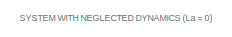
[diagram: root canvas - part 1/5, top left region]
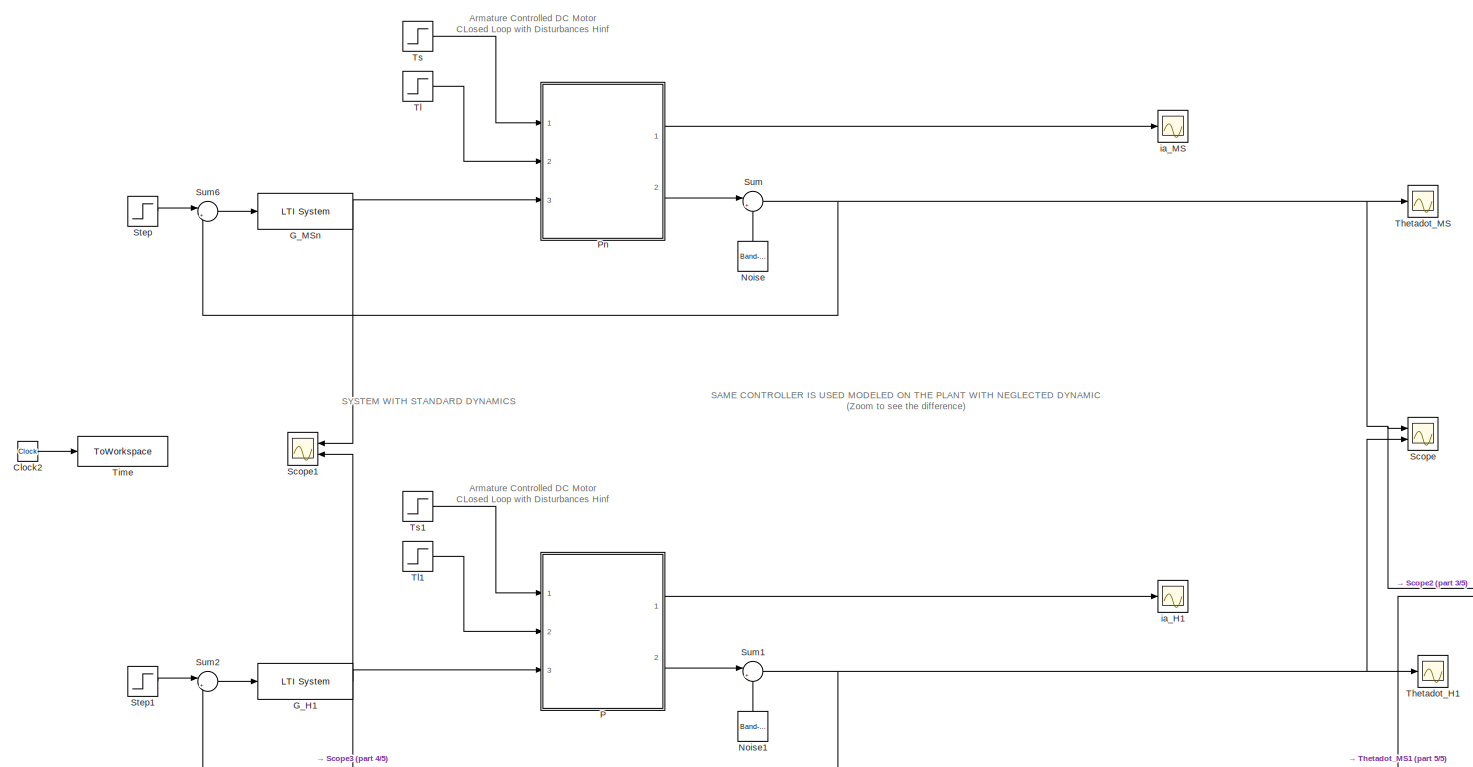
[diagram: root canvas - part 2/5, central region]
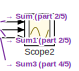
[diagram: root canvas - part 3/5, middle right region]
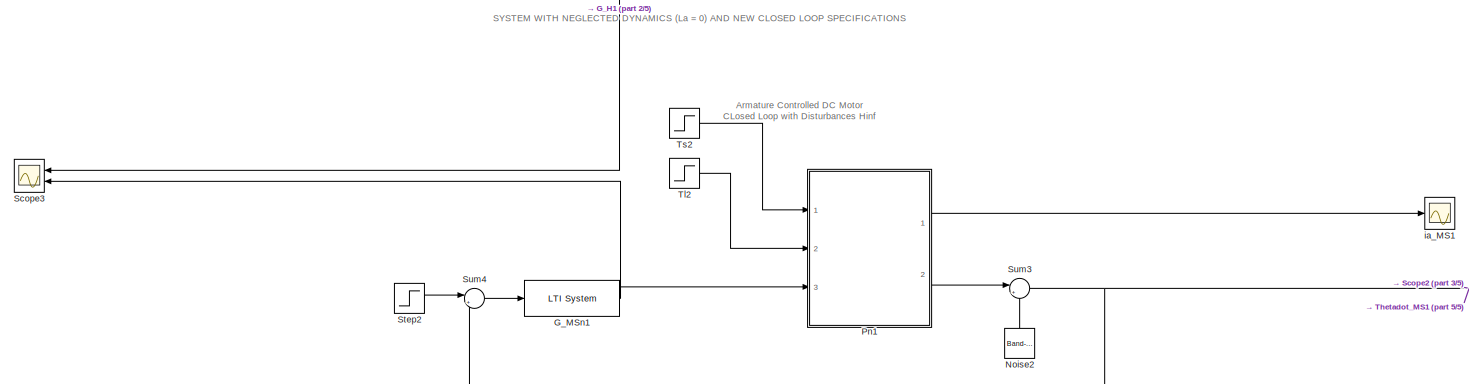
[diagram: root canvas - part 4/5, bottom center region]
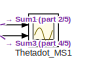
[diagram: root canvas - part 5/5, bottom right region]
MODEL slx_1231aa79a7b7
KIND model
CONFIG AbsTol = auto
CONFIG EnableMultiTasking = off
CONFIG FixedStep = auto
CONFIG MaxStep = auto
CONFIG MinStep = auto
CONFIG RelTol = 1e-3
CONFIG SampleTimeConstraint = Unconstrained
CONFIG SolverName = VariableStepAuto
CONFIG StartTime = 0.0
CONFIG StopTime = 1
BLOCK [Clock] Clock2
BLOCK [Reference] G_H1  REF=cstblocks/LTI System
  Ports = [1, 1]
  SourceBlock = cstblocks/LTI System
  SourceProductBaseCode = CT
  SourceType = LTI Block
BLOCK [Reference] G_MSn  REF=cstblocks/LTI System
  Ports = [1, 1]
  SourceBlock = cstblocks/LTI System
  SourceProductBaseCode = CT
  SourceType = LTI Block
BLOCK [Reference] G_MSn1  REF=cstblocks/LTI System
  Ports = [1, 1]
  SourceBlock = cstblocks/LTI System
  SourceProductBaseCode = CT
  SourceType = LTI Block
BLOCK [Reference] Noise  REF=simulink/Sources/Band-Limited
White Noise
  NameLocation = right
  Ports = [0, 1]
  SourceBlock = simulink/Sources/Band-Limited\nWhite Noise
  SourceProductBaseCode = SL
  SourceType = Band-Limited White Noise.
BLOCK [Reference] Noise1  REF=simulink/Sources/Band-Limited
White Noise
  NameLocation = right
  Ports = [0, 1]
  SourceBlock = simulink/Sources/Band-Limited\nWhite Noise
  SourceProductBaseCode = SL
  SourceType = Band-Limited White Noise.
BLOCK [Reference] Noise2  REF=simulink/Sources/Band-Limited
White Noise
  NameLocation = right
  Ports = [0, 1]
  SourceBlock = simulink/Sources/Band-Limited\nWhite Noise
  SourceProductBaseCode = SL
  SourceType = Band-Limited White Noise.
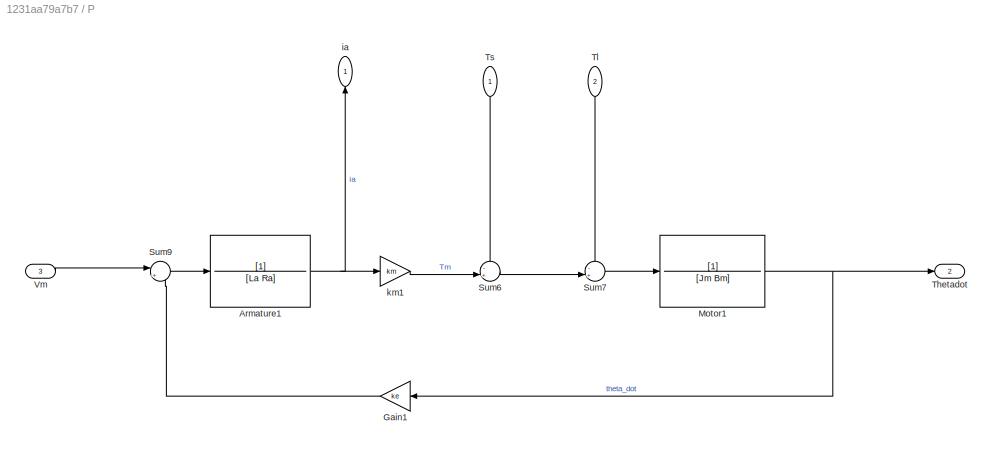
BLOCK [SubSystem] P
  Ports = [3, 2]
  RequestExecContextInheritance = off
BLOCK [TransferFcn] P/Armature1
  Denominator = [La Ra]
BLOCK [Gain] P/Gain1
  Gain = ke
  NameLocation = top
BLOCK [TransferFcn] P/Motor1
  Denominator = [Jm Bm]
BLOCK [Sum] P/Sum6
  Inputs = -+|
  Ports = [2, 1]
BLOCK [Sum] P/Sum7
  Inputs = -+|
  Ports = [2, 1]
BLOCK [Sum] P/Sum9
  Inputs = |+-
  Ports = [2, 1]
BLOCK [Outport] P/Thetadot
  Port = 2
BLOCK [Inport] P/Tl
  NameLocation = left
  Port = 2
BLOCK [Inport] P/Ts
  NameLocation = left
BLOCK [Inport] P/Vm
  Port = 3
BLOCK [Outport] P/ia
  NameLocation = right
BLOCK [Gain] P/km1
  Gain = km
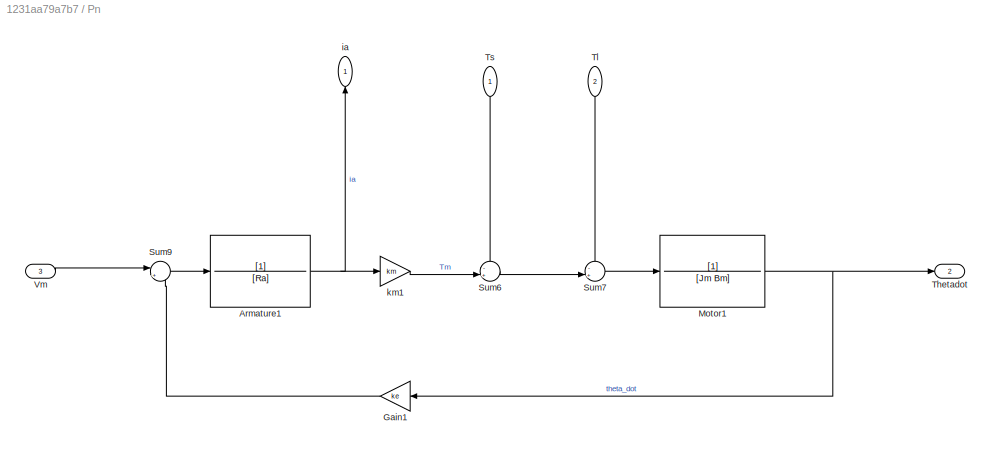
BLOCK [SubSystem] Pn
  Ports = [3, 2]
  RequestExecContextInheritance = off
BLOCK [TransferFcn] Pn/Armature1
  Denominator = [Ra]
BLOCK [Gain] Pn/Gain1
  Gain = ke
  NameLocation = top
BLOCK [TransferFcn] Pn/Motor1
  Denominator = [Jm Bm]
BLOCK [Sum] Pn/Sum6
  Inputs = -+|
  Ports = [2, 1]
BLOCK [Sum] Pn/Sum7
  Inputs = -+|
  Ports = [2, 1]
BLOCK [Sum] Pn/Sum9
  Inputs = |+-
  Ports = [2, 1]
BLOCK [Outport] Pn/Thetadot
  Port = 2
BLOCK [Inport] Pn/Tl
  NameLocation = left
  Port = 2
BLOCK [Inport] Pn/Ts
  NameLocation = left
BLOCK [Inport] Pn/Vm
  Port = 3
BLOCK [Outport] Pn/ia
  NameLocation = right
BLOCK [Gain] Pn/km1
  Gain = km
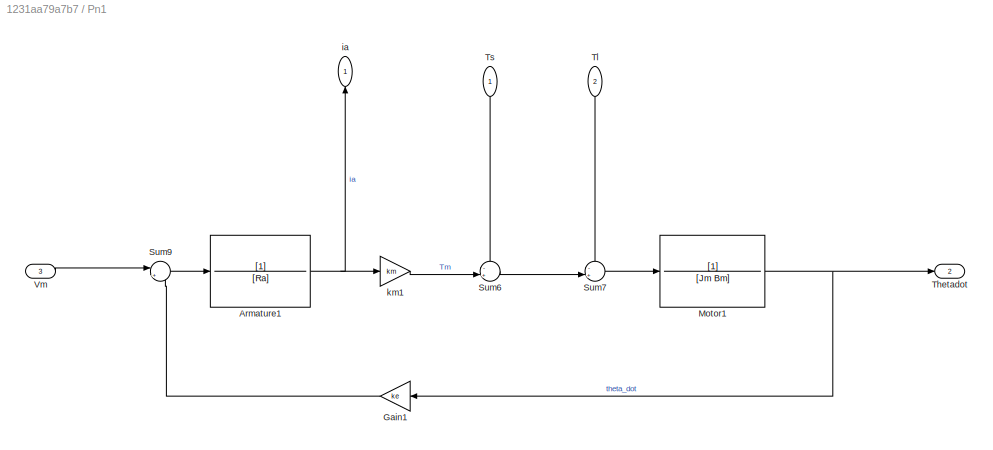
BLOCK [SubSystem] Pn1
  Ports = [3, 2]
  RequestExecContextInheritance = off
BLOCK [TransferFcn] Pn1/Armature1
  Denominator = [Ra]
BLOCK [Gain] Pn1/Gain1
  Gain = ke
  NameLocation = top
BLOCK [TransferFcn] Pn1/Motor1
  Denominator = [Jm Bm]
BLOCK [Sum] Pn1/Sum6
  Inputs = -+|
  Ports = [2, 1]
BLOCK [Sum] Pn1/Sum7
  Inputs = -+|
  Ports = [2, 1]
BLOCK [Sum] Pn1/Sum9
  Inputs = |+-
  Ports = [2, 1]
BLOCK [Outport] Pn1/Thetadot
  Port = 2
BLOCK [Inport] Pn1/Tl
  NameLocation = left
  Port = 2
BLOCK [Inport] Pn1/Ts
  NameLocation = left
BLOCK [Inport] Pn1/Vm
  Port = 3
BLOCK [Outport] Pn1/ia
  NameLocation = right
BLOCK [Gain] Pn1/km1
  Gain = km
BLOCK [Scope] Scope
  Floating = off
  NumInputPorts = 2
  Ports = [2]
  ScopeSpecificationString = Simulink.scopes.TimeScopeBlockCfg('CurrentConfiguration', extmgr.ConfigurationSet(extmgr.Configuration('Core','General UI',true),extmgr.Configuration('Core','Source UI',true),extmgr.Configuration('Sources','WiredSimulink',true,'DataLoggingVariableName','ScopeData4'),extmgr.Configuration('Visuals','Time Domain',true,'SerializedDisplays',{struct('MinYLimReal','-3114.67734','MaxYLimReal','28035.63699...<+1472ch>
BLOCK [Scope] Scope1
  Floating = off
  NameLocation = top
  NumInputPorts = 2
  Ports = [2]
  ScopeSpecificationString = Simulink.scopes.TimeScopeBlockCfg('CurrentConfiguration', extmgr.ConfigurationSet(extmgr.Configuration('Core','General UI',true),extmgr.Configuration('Core','Source UI',true),extmgr.Configuration('Sources','WiredSimulink',true,'DataLoggingVariableName','ScopeData5'),extmgr.Configuration('Visuals','Time Domain',true,'SerializedDisplays',{struct('MinYLimReal','-4.07655','MaxYLimReal','36.68894','YLa...<+1419ch>
BLOCK [Scope] Scope2
  Floating = off
  NumInputPorts = 3
  Ports = [3]
  ScopeSpecificationString = Simulink.scopes.TimeScopeBlockCfg('CurrentConfiguration', extmgr.ConfigurationSet(extmgr.Configuration('Core','General UI',true),extmgr.Configuration('Core','Source UI',true),extmgr.Configuration('Sources','WiredSimulink',true,'DataLoggingVariableName','ScopeData1'),extmgr.Configuration('Visuals','Time Domain',true,'SerializedDisplays',{struct('MinYLimReal','-3121.80847','MaxYLimReal','28099.81715...<+1477ch>
BLOCK [Scope] Scope3
  Floating = off
  NameLocation = top
  NumInputPorts = 2
  Ports = [2]
  ScopeSpecificationString = Simulink.scopes.TimeScopeBlockCfg('CurrentConfiguration', extmgr.ConfigurationSet(extmgr.Configuration('Core','General UI',true),extmgr.Configuration('Core','Source UI',true),extmgr.Configuration('Sources','WiredSimulink',true,'DataLoggingVariableName','ScopeData1'),extmgr.Configuration('Visuals','Time Domain',true,'SerializedDisplays',{struct('MinYLimReal','-4.07655','MaxYLimReal','36.68894','YLa...<+1452ch>
BLOCK [Step] Step
  After = 25000
  SampleTime = 0
  Time = 0
BLOCK [Step] Step1
  After = 25000
  SampleTime = 0
  Time = 0
BLOCK [Step] Step2
  After = 25000
  SampleTime = 0
  Time = 0
BLOCK [Sum] Sum
  Inputs = |++
  Ports = [2, 1]
BLOCK [Sum] Sum1
  Inputs = |++
  Ports = [2, 1]
BLOCK [Sum] Sum2
  Inputs = |+-
  Ports = [2, 1]
BLOCK [Sum] Sum3
  Inputs = |++
  Ports = [2, 1]
BLOCK [Sum] Sum4
  Inputs = |+-
  Ports = [2, 1]
BLOCK [Sum] Sum6
  Inputs = |+-
  Ports = [2, 1]
BLOCK [Scope] Thetadot_H1
  Floating = off
  NumInputPorts = 1
  Ports = [1]
  ScopeSpecificationString = Simulink.scopes.TimeScopeBlockCfg('CurrentConfiguration', extmgr.ConfigurationSet(extmgr.Configuration('Core','General UI',true),extmgr.Configuration('Core','Source UI',true),extmgr.Configuration('Sources','WiredSimulink',true,'DataLoggingVariableName','ScopeData2'),extmgr.Configuration('Visuals','Time Domain',true,'SerializedDisplays',{struct('MinYLimReal','-3029.03484','MaxYLimReal','26158.41795...<+1465ch>
BLOCK [Scope] Thetadot_MS
  Floating = off
  NumInputPorts = 1
  Ports = [1]
  ScopeSpecificationString = Simulink.scopes.TimeScopeBlockCfg('CurrentConfiguration', extmgr.ConfigurationSet(extmgr.Configuration('Core','General UI',true),extmgr.Configuration('Core','Source UI',true),extmgr.Configuration('Sources','WiredSimulink',true,'DataLoggingVariableName','ScopeData1'),extmgr.Configuration('Visuals','Time Domain',true,'SerializedDisplays',{struct('MinYLimReal','-3029.03484','MaxYLimReal','26158.41795...<+1465ch>
BLOCK [Scope] Thetadot_MS1
  Floating = off
  NumInputPorts = 2
  Ports = [2]
  ScopeSpecificationString = Simulink.scopes.TimeScopeBlockCfg('CurrentConfiguration', extmgr.ConfigurationSet(extmgr.Configuration('Core','General UI',true),extmgr.Configuration('Core','Source UI',true),extmgr.Configuration('Sources','WiredSimulink',true,'DataLoggingVariableName','ScopeData2'),extmgr.Configuration('Visuals','Time Domain',true,'SerializedDisplays',{struct('MinYLimReal','-3121.9491','MaxYLimReal','28101.10684'...<+1471ch>
BLOCK [ToWorkspace] Time
  FixptAsFi = on
  MaxDataPoints = inf
  Ports = [1]
  SampleTime = -1
  SaveFormat = Timeseries
  VariableName = T
BLOCK [Step] Tl
  After = Tl
  SampleTime = 0
  Time = 0.5
BLOCK [Step] Tl1
  After = Tl
  SampleTime = 0
  Time = 0.5
BLOCK [Step] Tl2
  After = Tl
  SampleTime = 0
  Time = 0.5
BLOCK [Step] Ts
  After = Ts
  SampleTime = 0
  Time = 0
BLOCK [Step] Ts1
  After = Ts
  SampleTime = 0
  Time = 0
BLOCK [Step] Ts2
  After = Ts
  SampleTime = 0
  Time = 0
BLOCK [Scope] ia_H1
  Floating = off
  NumInputPorts = 1
  Ports = [1]
  ScopeSpecificationString = Simulink.scopes.TimeScopeBlockCfg('CurrentConfiguration', extmgr.ConfigurationSet(extmgr.Configuration('Core','General UI',true),extmgr.Configuration('Core','Source UI',true),extmgr.Configuration('Sources','WiredSimulink',true,'DataLoggingVariableName','ScopeData3'),extmgr.Configuration('Visuals','Time Domain',true,'SerializedDisplays',{struct('MinYLimReal','-0.24632','MaxYLimReal','1.32771','YLab...<+1391ch>
BLOCK [Scope] ia_MS
  Floating = off
  NumInputPorts = 1
  Ports = [1]
  ScopeSpecificationString = Simulink.scopes.TimeScopeBlockCfg('CurrentConfiguration', extmgr.ConfigurationSet(extmgr.Configuration('Core','General UI',true),extmgr.Configuration('Core','Source UI',true),extmgr.Configuration('Sources','WiredSimulink',true),extmgr.Configuration('Visuals','Time Domain',true,'SerializedDisplays',{struct('MinYLimReal','-0.24632','MaxYLimReal','1.32771','YLabelReal','','MinYLimMag','0.00000','MaxY...<+1352ch>
BLOCK [Scope] ia_MS1
  Floating = off
  NumInputPorts = 1
  Ports = [1]
  ScopeSpecificationString = Simulink.scopes.TimeScopeBlockCfg('CurrentConfiguration', extmgr.ConfigurationSet(extmgr.Configuration('Core','General UI',true),extmgr.Configuration('Core','Source UI',true),extmgr.Configuration('Sources','WiredSimulink',true,'DataLoggingVariableName','ScopeData3'),extmgr.Configuration('Visuals','Time Domain',true,'SerializedDisplays',{struct('MinYLimReal','-0.24632','MaxYLimReal','1.32771','YLab...<+1391ch>
ANNOTATION (root): SAME CONTROLLER IS USED MODELED ON THE PLANT WITH NEGLECTED DYNAMIC (Zoom to see the difference)
ANNOTATION (root): SYSTEM WITH NEGLECTED DYNAMICS (La = 0) AND NEW CLOSED LOOP SPECIFICATIONS
ANNOTATION (root): SYSTEM WITH NEGLECTED DYNAMICS (La = 0)
ANNOTATION (root): SYSTEM WITH STANDARD DYNAMICS
ANNOTATION (root): Armature Controlled DC Motor CLosed Loop with Disturbances Hinf
LINE Clock2:1 -> Time:1
NET G_H1:1 -> P:3, Scope1:2, Scope3:1
NET G_MSn1:1 -> Pn1:3, Scope3:2
NET G_MSn:1 -> Pn:3, Scope1:1
LINE Noise1:1 -> Sum1:2
LINE Noise2:1 -> Sum3:2
LINE Noise:1 -> Sum:2
NET P/Armature1:1 -> P/ia:1, P/km1:1
LINE P/Gain1:1 -> P/Sum9:2
NET P/Motor1:1 -> P/Gain1:1, P/Thetadot:1
LINE P/Sum6:1 -> P/Sum7:2
LINE P/Sum7:1 -> P/Motor1:1
LINE P/Sum9:1 -> P/Armature1:1
LINE P/Tl:1 -> P/Sum7:1
LINE P/Ts:1 -> P/Sum6:1
LINE P/Vm:1 -> P/Sum9:1
LINE P/km1:1 -> P/Sum6:2
LINE P:1 -> ia_H1:1
LINE P:2 -> Sum1:1
NET Pn/Armature1:1 -> Pn/ia:1, Pn/km1:1
LINE Pn/Gain1:1 -> Pn/Sum9:2
NET Pn/Motor1:1 -> Pn/Gain1:1, Pn/Thetadot:1
LINE Pn/Sum6:1 -> Pn/Sum7:2
LINE Pn/Sum7:1 -> Pn/Motor1:1
LINE Pn/Sum9:1 -> Pn/Armature1:1
LINE Pn/Tl:1 -> Pn/Sum7:1
LINE Pn/Ts:1 -> Pn/Sum6:1
LINE Pn/Vm:1 -> Pn/Sum9:1
LINE Pn/km1:1 -> Pn/Sum6:2
NET Pn1/Armature1:1 -> Pn1/ia:1, Pn1/km1:1
LINE Pn1/Gain1:1 -> Pn1/Sum9:2
NET Pn1/Motor1:1 -> Pn1/Gain1:1, Pn1/Thetadot:1
LINE Pn1/Sum6:1 -> Pn1/Sum7:2
LINE Pn1/Sum7:1 -> Pn1/Motor1:1
LINE Pn1/Sum9:1 -> Pn1/Armature1:1
LINE Pn1/Tl:1 -> Pn1/Sum7:1
LINE Pn1/Ts:1 -> Pn1/Sum6:1
LINE Pn1/Vm:1 -> Pn1/Sum9:1
LINE Pn1/km1:1 -> Pn1/Sum6:2
LINE Pn1:1 -> ia_MS1:1
LINE Pn1:2 -> Sum3:1
LINE Pn:1 -> ia_MS:1
LINE Pn:2 -> Sum:1
LINE Step1:1 -> Sum2:1
LINE Step2:1 -> Sum4:1
LINE Step:1 -> Sum6:1
NET Sum1:1 -> Scope2:2, Scope:2, Sum2:2, Thetadot_H1:1, Thetadot_MS1:1
LINE Sum2:1 -> G_H1:1
NET Sum3:1 -> Scope2:3, Sum4:2, Thetadot_MS1:2
LINE Sum4:1 -> G_MSn1:1
LINE Sum6:1 -> G_MSn:1
NET Sum:1 -> Scope2:1, Scope:1, Sum6:2, Thetadot_MS:1
LINE Tl1:1 -> P:2
LINE Tl2:1 -> Pn1:2
LINE Tl:1 -> Pn:2
LINE Ts1:1 -> P:1
LINE Ts2:1 -> Pn1:1
LINE Ts:1 -> Pn:1
note: NET lines group one-source signal fan-out (src -> all destinations, sorted); 1:1 wires keep LINE
